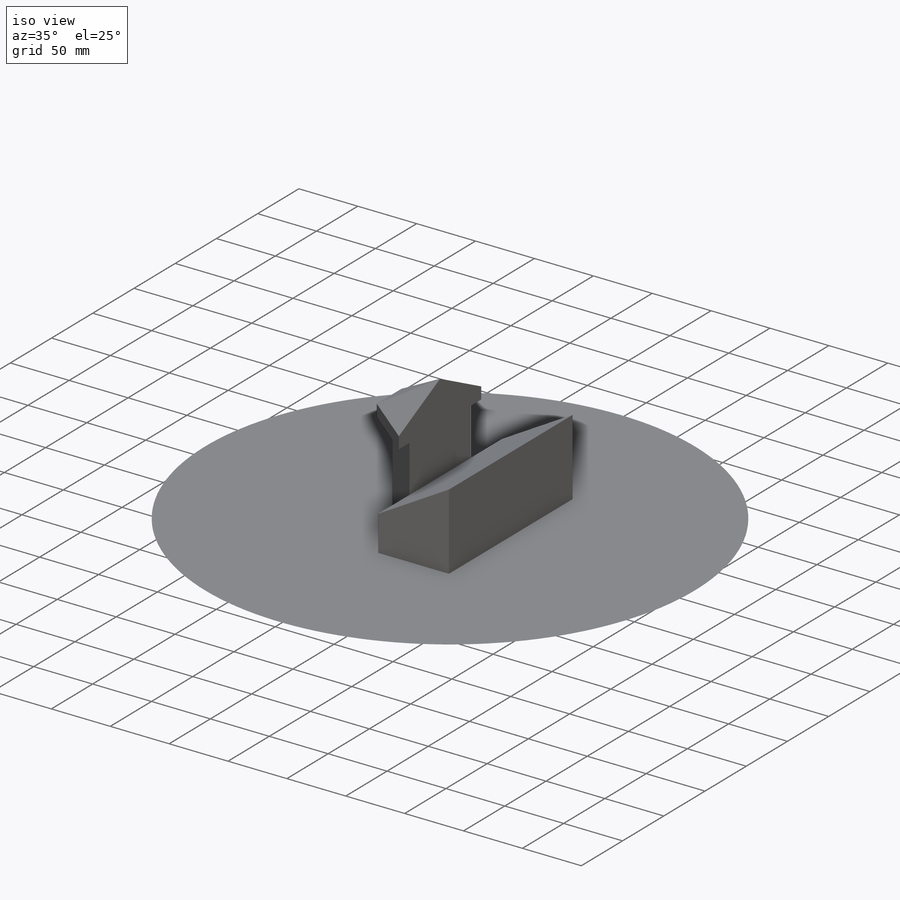
[diagram: iso view]
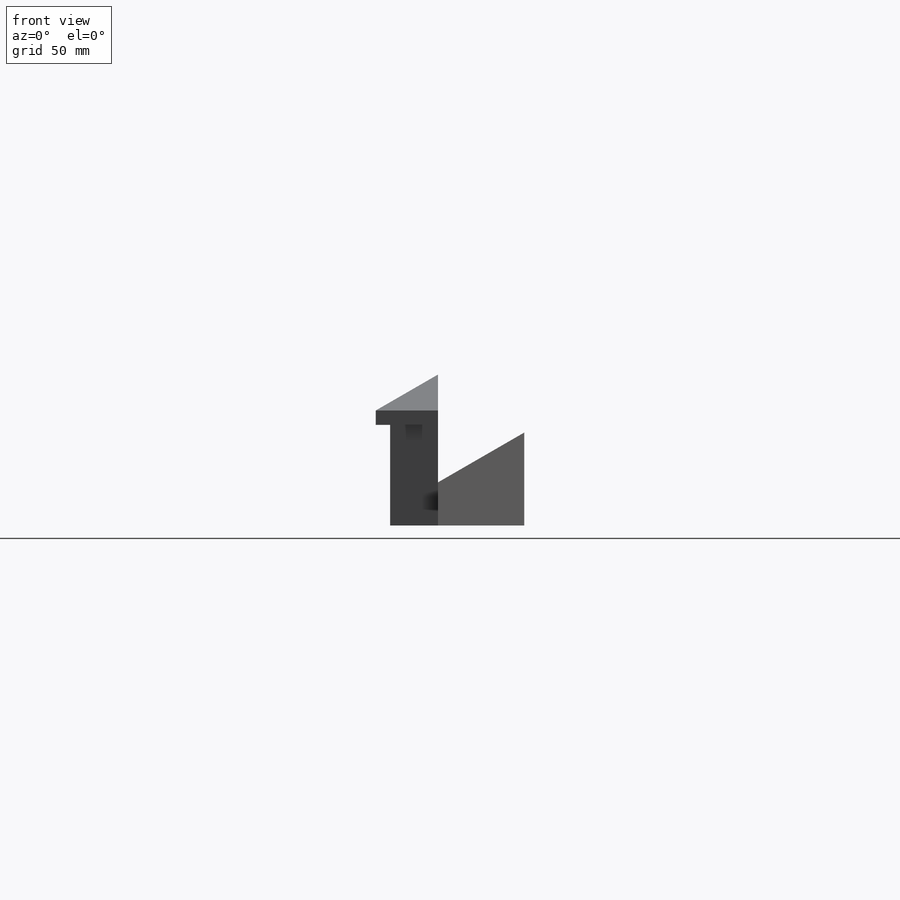
[diagram: front view]
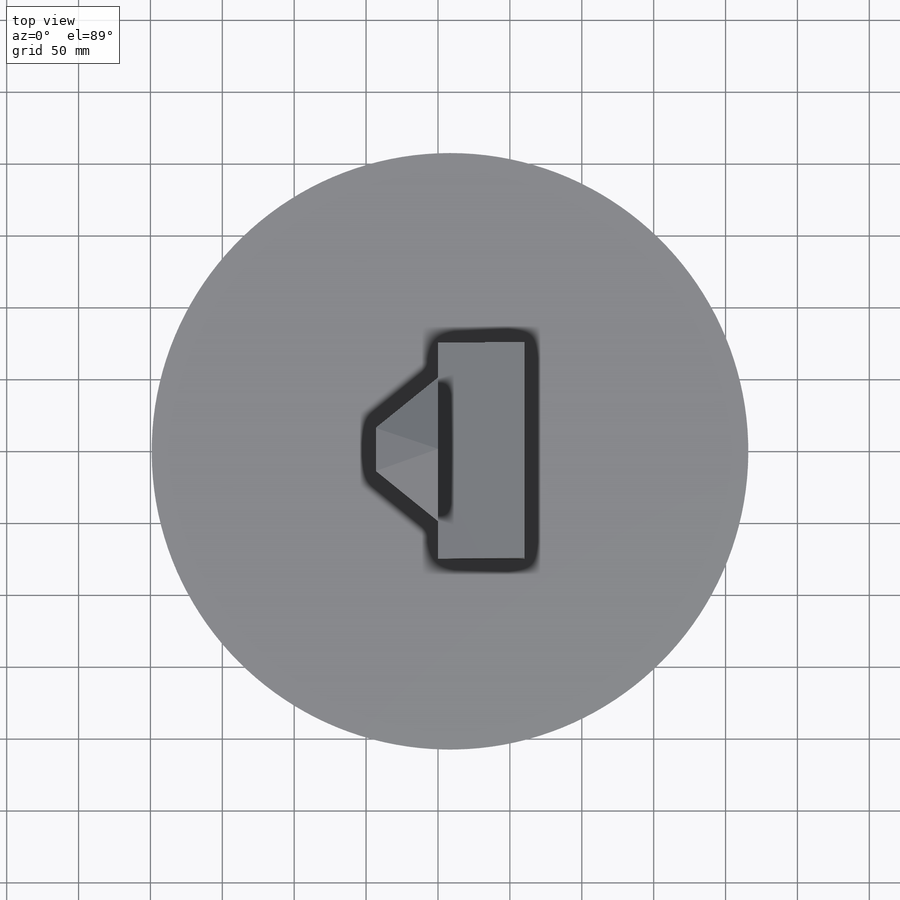
[diagram: top view]
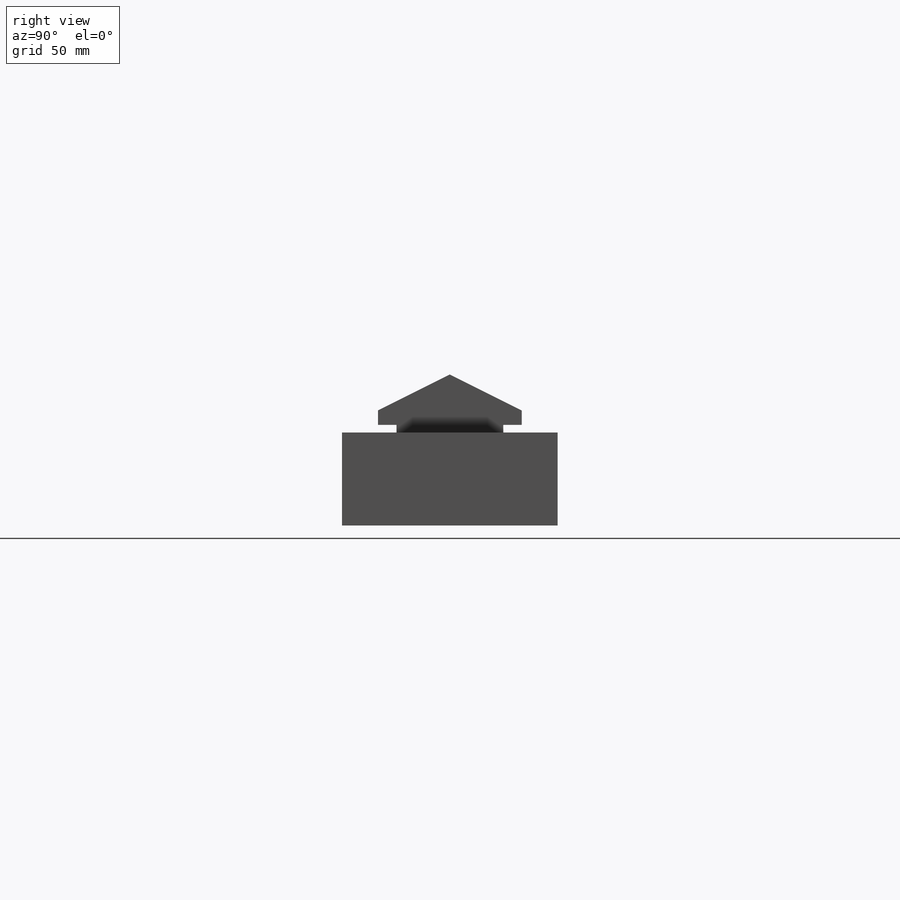
[diagram: right view]
SOLIDWORKS PART (.sldprt)
format: sldprt  version: not decoded by parser v0  size: 270,336 bytes
history: native  units: mm
features: sketch x6, extrude x4, material x1 (+14 scaffold rows collapsed)
feature tree (25):
  scaffold x14  (default folders/planes/origin — collapsed)
  material  "Material <not specified>"
  sketch  "Sketch1"  dims[c1.D1=60.0mm c1.D2=30.0mm c1.D3=60.0mm c2.D3=30.0deg]
  extrude  "Extrude1"  Depth=150mm
  sketch  "Sketch2"  dims[c1.D2=~86.60254mm c1.D1=100.0mm c2.D2=30.0mm c2.D3=35.0mm c2.D4=35.0mm c2.D5=10.0mm]
  extrude  "Extrude2"  Depth=70mm
  sketch  "Sketch3"
  extrude  "Extrude3"  Depth=10mm
  sketch  "Sketch4"
  sketch  "Sketch5"  dims[c1.D1=~60.282889mm c2.D1=30.0deg]
  sketch  "Sketch6"  dims[D1=415.0mm]
  extrude  "Extrude4"  Depth=0.01mm
decode coverage: 8 of 10 modeling features carry decoded parameters
note: ~ marks probable driven/reference dimensions
note: suppression state not decoded; provenance and decode notes live in map.json
